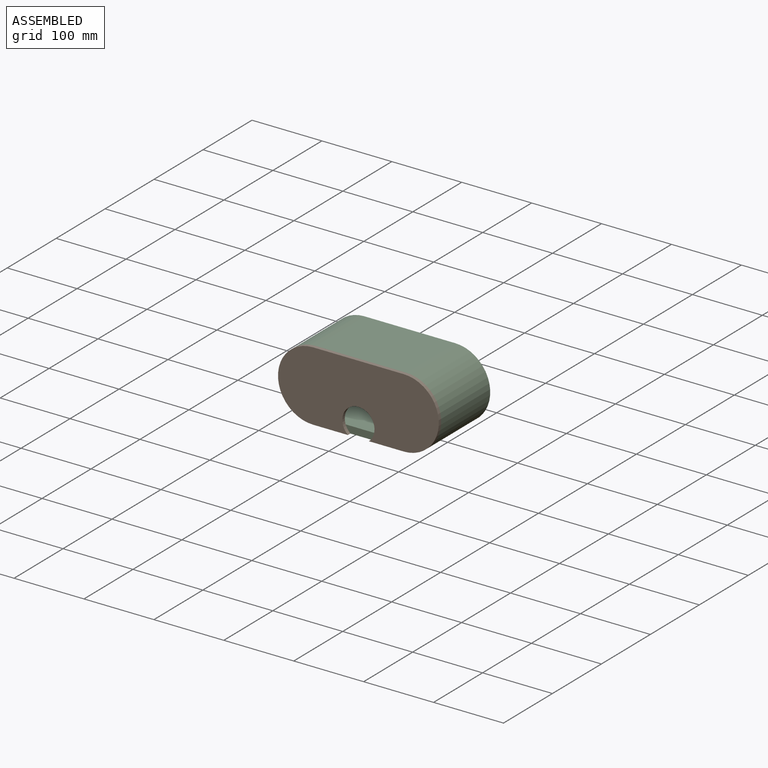
[diagram: assembled view]
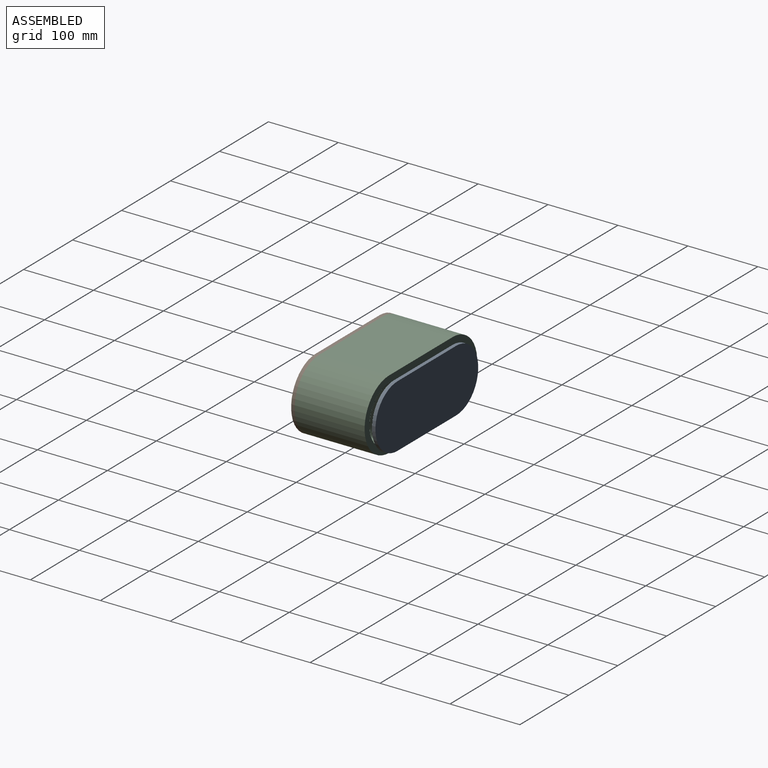
[diagram: assembled view, second angle]
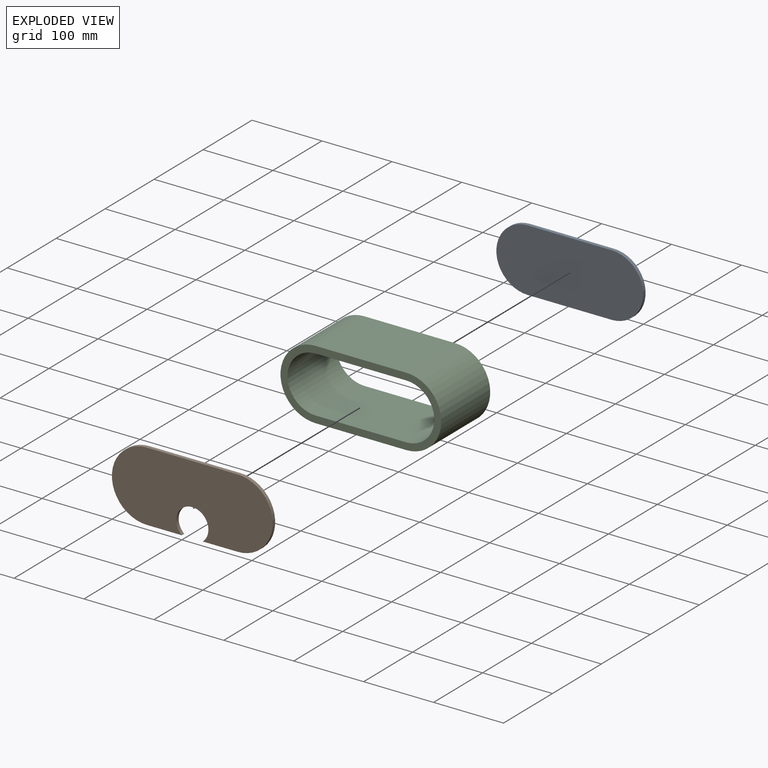
[diagram: exploded view]
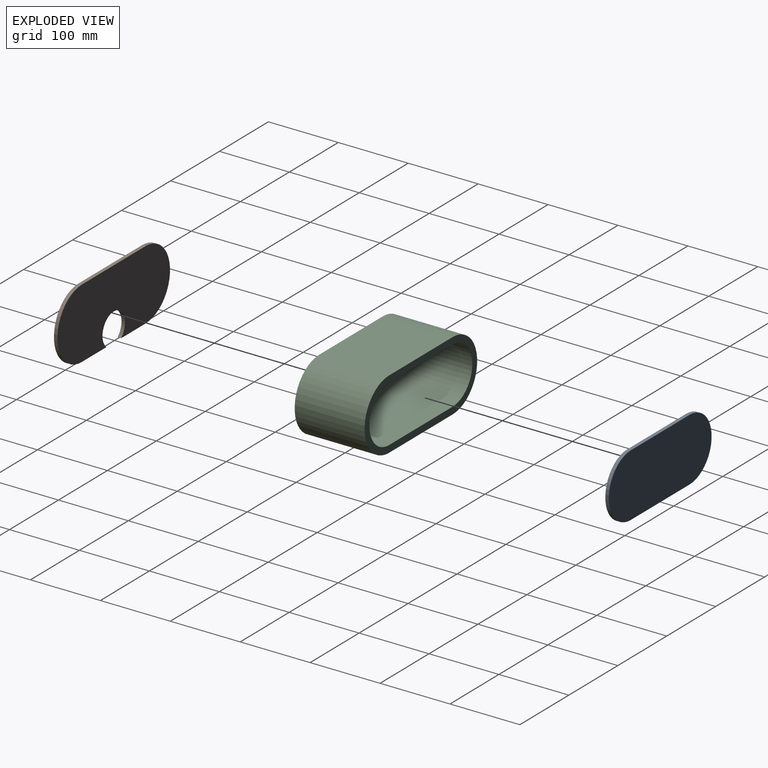
[diagram: exploded view, second angle]
ASSEMBLY  parts=3 mates=3
PART A: 6 faces, bbox 210x5x90 mm
  f0: plane 120x5mm, normal (0,0,1), area 600mm2, adj f1,f3,f4,f5
  f1: cylinder r=45mm len=90mm, axis (0,1,0), area 706.9mm2, adj f0,f2,f4,f5
  f2: plane 120x5mm, normal (0,0,-1), area 600mm2, adj f1,f3,f4,f5
  f3: cylinder r=45mm len=90mm, axis (0,1,0), area 706.9mm2, adj f0,f2,f4,f5
  f4: plane 210x90mm, normal (0,-1,0), area 17161.7mm2, adj f0,f1,f2,f3
  f5: plane 210x90mm, normal (0,1,0), area 17161.7mm2, adj f0,f1,f2,f3
PART B: 8 faces, bbox 230x5x100 mm
  f0: cylinder r=23mm len=46mm, axis (0,1,0), area 559.2mm2, adj f1,f5,f6,f7
  f1: plane 50x5mm, normal (0,0,-1), area 250mm2, adj f0,f2,f6,f7
  f2: cylinder r=50mm len=100mm, axis (0,1,0), area 785.4mm2, adj f1,f3,f6,f7
  f3: plane 130x5mm, normal (0,0,1), area 650mm2, adj f2,f4,f6,f7
  f4: cylinder r=50mm len=100mm, axis (0,1,0), area 785.4mm2, adj f3,f5,f6,f7
  f5: plane 50x5mm, normal (0,0,-1), area 250mm2, adj f0,f4,f6,f7
  f6: plane 230x100mm, normal (0,-1,0), area 19306.4mm2, adj f0,f1,f2,f3,f4,f5
  f7: plane 230x100mm, normal (0,1,0), area 19306.4mm2, adj f0,f1,f2,f3,f4,f5
PART C: 10 faces, bbox 230x100x100 mm
  f0: plane 130x100mm, normal (0,0,1), area 13000mm2, adj f1,f3,f4,f5
  f1: cylinder r=50mm len=100mm, axis (0,1,0), area 15708mm2, adj f0,f2,f4,f5
  f2: plane 130x100mm, normal (0,0,-1), area 13000mm2, adj f1,f3,f4,f5
  f3: cylinder r=50mm len=100mm, axis (0,1,0), area 15708mm2, adj f0,f2,f4,f5
  f4: plane 230x100mm, normal (0,-1,0), area 5427.4mm2, adj f0,f1,f2,f3,f6,f7,f8,f9
  f5: plane 230x100mm, normal (0,1,0), area 5427.4mm2, adj f0,f1,f2,f3,f6,f7,f8,f9
  f6: plane 130x100mm, normal (0,0,-1), area 13000mm2, adj f4,f5,f7,f9
  f7: cylinder r=40mm len=100mm, axis (0,1,0), area 12566.4mm2, adj f4,f5,f6,f8
  f8: plane 130x100mm, normal (0,0,1), area 13000mm2, adj f4,f5,f7,f9
  f9: cylinder r=40mm len=100mm, axis (0,1,0), area 12566.4mm2, adj f4,f5,f6,f8
PLACE A t=(-52.18,52.31,-65.14)mm
PLACE B t=(-52.18,-52.69,-65.14)mm
PLACE C t=(-52.18,47.31,-15.14)mm fixed
MATE cylindrical C.f3 <-> B.f2  axis (0,1,0) through (77.82,-2.69,-15.14)mm
MATE planar A.f4 <-> C.f5  axis (0,-1,0) through (7.82,47.31,-20.14)mm
MATE planar B.f7 <-> C.f4  axis (0,1,0) through (12.82,-52.69,-12.64)mm
